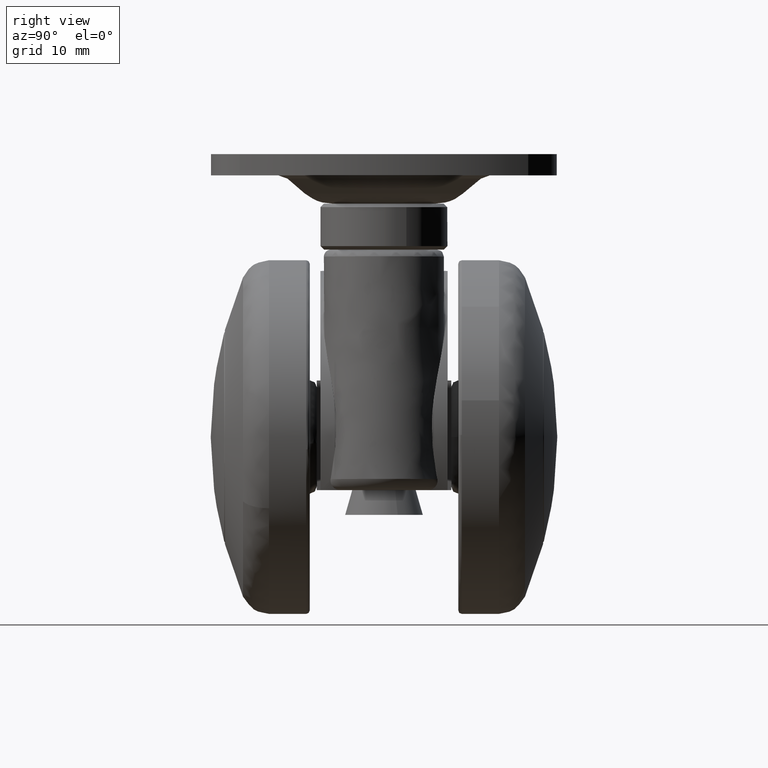
[diagram: clean part render]
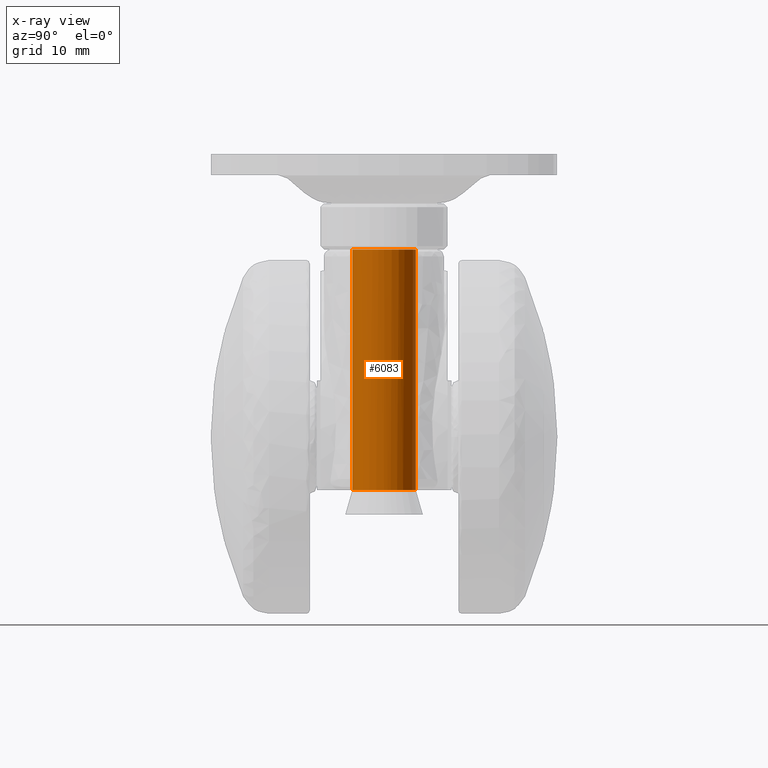
[diagram: x-ray — body ghosted, one internal face saturated and labeled with its STEP entity id]
A machine part, right view, then the same camera in x-ray: the body is ghosted and one INTERNAL B-rep face — a face not visible from any outside direction — is saturated and labeled: STEP entity #6083.
In plain terms, the highlighted face is a freeform B-spline surface patch.
Its self-contained STEP definition (entity closure, byte-faithful):
#5918=CARTESIAN_POINT('',(16.441423990571099,-4.465197962206212,26.500000000000000));
#5919=VERTEX_POINT('',#5918);
#5933=CARTESIAN_POINT('',(16.441430532839370,-4.465198780604559,-7.499999999999998));
#5934=VERTEX_POINT('',#5933);
#5935=CARTESIAN_POINT('',(16.441423990571099,-4.465197962206212,26.500000000000000));
#5936=CARTESIAN_POINT('',(16.441430532839370,-4.465198780604559,-7.499999999999998));
#5937=QUASI_UNIFORM_CURVE('',1,(#5935,#5936),.UNSPECIFIED.,.F.,.U.);
#5938=EDGE_CURVE('',#5919,#5934,#5937,.T.);
#5955=CARTESIAN_POINT('',(17.039269409921101,4.499828653787210,-7.500000000000000));
#5956=VERTEX_POINT('',#5955);
#5972=CARTESIAN_POINT('',(17.039269409903021,4.499828653787368,26.500000000000000));
#5973=VERTEX_POINT('',#5972);
#5974=CARTESIAN_POINT('',(17.039269409903021,4.499828653787368,26.500000000000000));
#5975=CARTESIAN_POINT('',(17.039269409921101,4.499828653787210,-7.500000000000000));
#5976=QUASI_UNIFORM_CURVE('',1,(#5974,#5975),.UNSPECIFIED.,.F.,.U.);
#5977=EDGE_CURVE('',#5973,#5956,#5976,.T.);
#5997=CARTESIAN_POINT('',(17.039269409742680,4.499828653788766,27.350000000000009));
#5998=CARTESIAN_POINT('',(21.539098063531458,4.460559244046083,27.350000000000009));
#5999=CARTESIAN_POINT('',(21.499828653788772,-0.039269409742685,27.350000000000009));
#6000=CARTESIAN_POINT('',(21.460559244046092,-4.539098063531455,27.350000000000009));
#6001=CARTESIAN_POINT('',(16.960730590257320,-4.499828653788772,27.350000000000009));
#6002=CARTESIAN_POINT('',(16.700074284688217,-4.497553940671242,27.350000000000001));
#6003=CARTESIAN_POINT('',(16.441423990640764,-4.465197962214926,27.350000000000005));
#6004=CARTESIAN_POINT('',(17.039269409742680,4.499828653788766,-8.371250000000003));
#6005=CARTESIAN_POINT('',(21.539098063531458,4.460559244046083,-8.371250000000003));
#6006=CARTESIAN_POINT('',(21.499828653788772,-0.039269409742685,-8.371250000000003));
#6007=CARTESIAN_POINT('',(21.460559244046092,-4.539098063531455,-8.371250000000003));
#6008=CARTESIAN_POINT('',(16.960730590257320,-4.499828653788772,-8.371250000000003));
#6009=CARTESIAN_POINT('',(16.700074284688217,-4.497553940671242,-8.371250000000003));
#6010=CARTESIAN_POINT('',(16.441423990640764,-4.465197962214926,-8.371250000000003));
#6018=(BOUNDED_SURFACE()B_SPLINE_SURFACE(2,1,((#5997,#6004),(#5998,#6005),(#5999,#6006),(#6000,#6007),(#6001,#6008),(#6002,#6009),(#6003,#6010)),.UNSPECIFIED.,.F.,.F.,.U.)B_SPLINE_SURFACE_WITH_KNOTS((3,2,2,3),(2,2),(0.0,7.455844122715704,14.911688245431410,15.508155775248669),(0.0,35.721250000000012),.UNSPECIFIED.)GEOMETRIC_REPRESENTATION_ITEM()RATIONAL_B_SPLINE_SURFACE(((1.0,1.0),(0.707106781186548,0.707106781186548),(1.0,1.0),(0.707106781186548,0.707106781186548),(1.0,1.0),(0.976568542494924,0.976568542494924),(0.956886118190660,0.956886118190660)))REPRESENTATION_ITEM('')SURFACE());
#6019=CARTESIAN_POINT('',(21.500000000000000,-2.755364E-015,26.500000000000000));
#6020=VERTEX_POINT('',#6019);
#6021=CARTESIAN_POINT('',(16.441423990571096,-4.465197962206212,26.499999999999996));
#6022=CARTESIAN_POINT('',(16.719627826028791,-4.500000000000002,26.500000000000000));
#6023=CARTESIAN_POINT('',(17.0,-4.500000000000003,26.500000000000000));
#6024=CARTESIAN_POINT('',(21.500000000000000,-4.500000000000004,26.500000000000007));
#6025=CARTESIAN_POINT('',(21.500000000000000,-2.755364E-015,26.500000000000000));
#6033=(BOUNDED_CURVE()B_SPLINE_CURVE(2,(#6021,#6022,#6023,#6024,#6025),.UNSPECIFIED.,.F.,.U.)B_SPLINE_CURVE_WITH_KNOTS((3,2,3),(0.728526071024036,0.750000000000000,1.0),.UNSPECIFIED.)CURVE()GEOMETRIC_REPRESENTATION_ITEM()RATIONAL_B_SPLINE_CURVE((0.954005430264505,0.974841727286634,1.0,0.707106781186547,1.0))REPRESENTATION_ITEM(''));
#6034=EDGE_CURVE('',#5919,#6020,#6033,.T.);
#6035=ORIENTED_EDGE('',*,*,#6034,.T.);
#6036=CARTESIAN_POINT('',(21.500000000000000,-2.755364E-015,26.500000000000000));
#6037=CARTESIAN_POINT('',(21.500000000000007,4.460900447359476,26.500000000000004));
#6038=CARTESIAN_POINT('',(17.039269409903028,4.499828653787368,26.500000000000000));
#6046=(BOUNDED_CURVE()B_SPLINE_CURVE(2,(#6036,#6037,#6038),.UNSPECIFIED.,.F.,.U.)B_SPLINE_CURVE_WITH_KNOTS((3,3),(0.0,0.248460105652460),.UNSPECIFIED.)CURVE()GEOMETRIC_REPRESENTATION_ITEM()RATIONAL_B_SPLINE_CURVE((1.0,0.708910879634882,0.996414028071355))REPRESENTATION_ITEM(''));
#6047=EDGE_CURVE('',#6020,#5973,#6046,.T.);
#6048=ORIENTED_EDGE('',*,*,#6047,.T.);
#6049=ORIENTED_EDGE('',*,*,#5977,.T.);
#6050=CARTESIAN_POINT('',(21.500000000000000,-2.755364E-015,-7.500000000000000));
#6051=VERTEX_POINT('',#6050);
#6052=CARTESIAN_POINT('',(17.039269409921097,4.499828653787210,-7.500000000000000));
#6053=CARTESIAN_POINT('',(21.499999999999996,4.460900447323635,-7.500000000000001));
#6054=CARTESIAN_POINT('',(21.500000000000000,-2.755364E-015,-7.500000000000000));
#6062=(BOUNDED_CURVE()B_SPLINE_CURVE(2,(#6052,#6053,#6054),.UNSPECIFIED.,.F.,.U.)B_SPLINE_CURVE_WITH_KNOTS((3,3),(0.751539894348955,1.0),.UNSPECIFIED.)CURVE()GEOMETRIC_REPRESENTATION_ITEM()RATIONAL_B_SPLINE_CURVE((0.996414028068080,0.708910879636540,1.0))REPRESENTATION_ITEM(''));
#6063=EDGE_CURVE('',#5956,#6051,#6062,.T.);
#6064=ORIENTED_EDGE('',*,*,#6063,.T.);
#6065=CARTESIAN_POINT('',(21.500000000000000,-2.755364E-015,-7.500000000000000));
#6066=CARTESIAN_POINT('',(21.500000000000000,-4.500000000000004,-7.500000000000000));
#6067=CARTESIAN_POINT('',(17.0,-4.500000000000003,-7.500000000000000));
#6068=CARTESIAN_POINT('',(16.719631135490040,-4.500000000000003,-7.500000000000001));
#6069=CARTESIAN_POINT('',(16.441430532839373,-4.465198780604559,-7.499999999999998));
#6077=(BOUNDED_CURVE()B_SPLINE_CURVE(2,(#6065,#6066,#6067,#6068,#6069),.UNSPECIFIED.,.F.,.U.)B_SPLINE_CURVE_WITH_KNOTS((3,2,3),(0.0,0.250000000000000,0.271473681878583),.UNSPECIFIED.)CURVE()GEOMETRIC_REPRESENTATION_ITEM()RATIONAL_B_SPLINE_CURVE((1.0,0.707106781186547,1.0,0.974842016779223,0.954005909785564))REPRESENTATION_ITEM(''));
#6078=EDGE_CURVE('',#6051,#5934,#6077,.T.);
#6079=ORIENTED_EDGE('',*,*,#6078,.T.);
#6080=ORIENTED_EDGE('',*,*,#5938,.F.);
#6081=EDGE_LOOP('',(#6035,#6048,#6049,#6064,#6079,#6080));
#6082=FACE_OUTER_BOUND('',#6081,.T.);
#6083=ADVANCED_FACE('',(#6082),#6018,.F.);